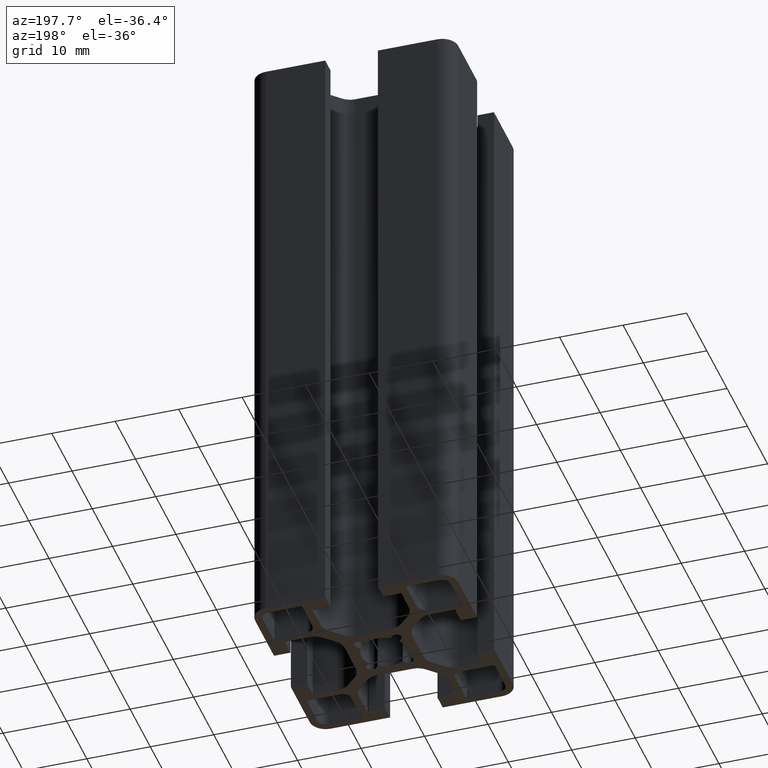
[diagram: clean part render]
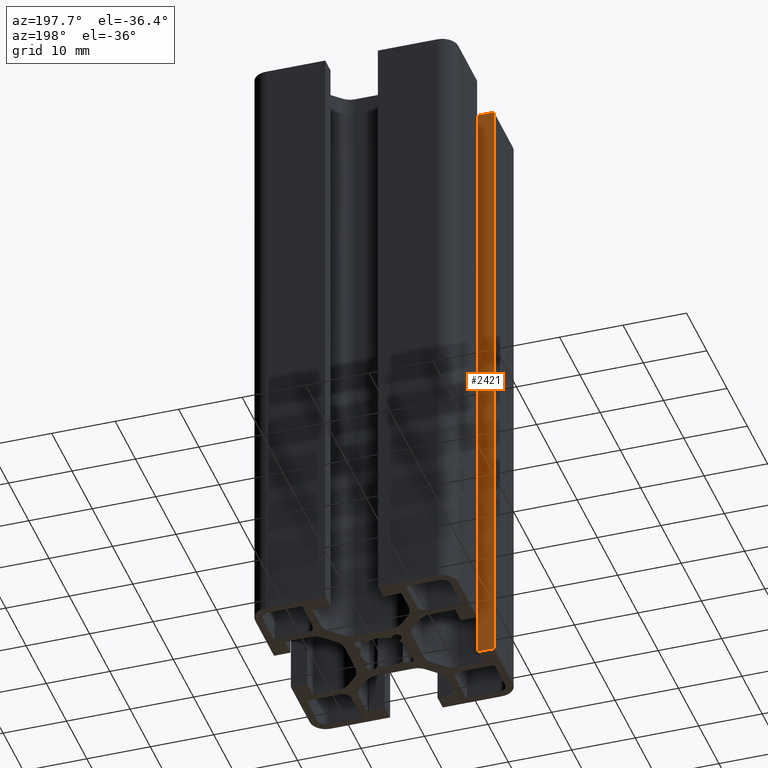
[diagram: same view with one face highlighted and labeled with its STEP entity id]
A machine part, auxiliary view. The second image highlights one B-rep face of the part: STEP entity #2421.
In plain terms, the highlighted planar face has unit normal (0, 1, 0).
Its self-contained STEP definition (entity closure, byte-faithful):
#265=FACE_OUTER_BOUND('',#387,.T.);
#387=EDGE_LOOP('',(#1883,#1884,#1885,#1886));
#611=LINE('',#3904,#867);
#612=LINE('',#3907,#868);
#613=LINE('',#3909,#869);
#614=LINE('',#3910,#870);
#867=VECTOR('',#3185,100.);
#868=VECTOR('',#3188,2.59999799999999);
#869=VECTOR('',#3189,2.59999799999999);
#870=VECTOR('',#3190,100.);
#1115=VERTEX_POINT('',#3900);
#1116=VERTEX_POINT('',#3902);
#1117=VERTEX_POINT('',#3906);
#1118=VERTEX_POINT('',#3908);
#1439=EDGE_CURVE('',#1115,#1116,#611,.T.);
#1440=EDGE_CURVE('',#1117,#1115,#612,.T.);
#1441=EDGE_CURVE('',#1118,#1116,#613,.T.);
#1442=EDGE_CURVE('',#1117,#1118,#614,.T.);
#1883=ORIENTED_EDGE('',*,*,#1440,.T.);
#1884=ORIENTED_EDGE('',*,*,#1439,.T.);
#1885=ORIENTED_EDGE('',*,*,#1441,.F.);
#1886=ORIENTED_EDGE('',*,*,#1442,.F.);
#2313=PLANE('',#2621);
#2421=ADVANCED_FACE('',(#265),#2313,.T.);
#2621=AXIS2_PLACEMENT_3D('',#3905,#3186,#3187);
#3185=DIRECTION('',(0.,0.,1.));
#3186=DIRECTION('center_axis',(0.,1.,0.));
#3187=DIRECTION('ref_axis',(-1.,0.,0.));
#3188=DIRECTION('',(-1.,0.,0.));
#3189=DIRECTION('',(-1.,0.,0.));
#3190=DIRECTION('',(0.,0.,1.));
#3900=CARTESIAN_POINT('',(-16.0000036639,-4.15000016390003,0.));
#3902=CARTESIAN_POINT('',(-16.0000036639,-4.15000016390003,100.));
#3904=CARTESIAN_POINT('',(-16.0000036639,-4.15000016390003,0.));
#3905=CARTESIAN_POINT('Origin',(-13.4000056639,-4.15000016390003,0.));
#3906=CARTESIAN_POINT('',(-13.4000056639,-4.15000016390003,0.));
#3907=CARTESIAN_POINT('',(-13.4000056639,-4.15000016390003,0.));
#3908=CARTESIAN_POINT('',(-13.4000056639,-4.15000016390003,100.));
#3909=CARTESIAN_POINT('',(-13.4000056639,-4.15000016390003,100.));
#3910=CARTESIAN_POINT('',(-13.4000056639,-4.15000016390003,0.));